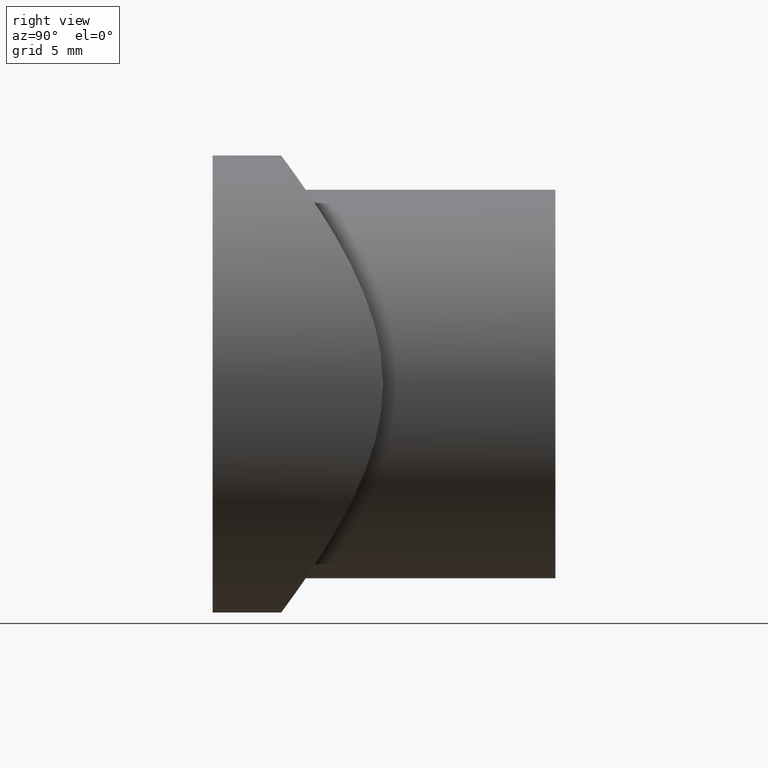
[diagram: clean part render]
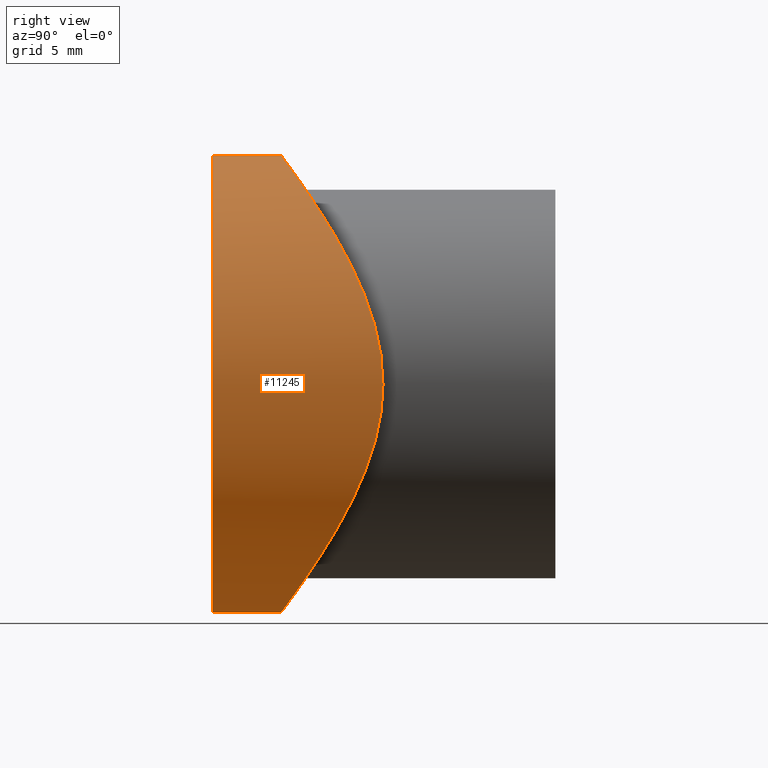
[diagram: same view with one face highlighted and labeled with its STEP entity id]
A machine part, right view. The second image highlights one B-rep face of the part: STEP entity #11245.
In plain terms, the highlighted cylindrical surface (partial cylindrical patch) has radius 10 mm, axis along (-0, -1, -0).
Its self-contained STEP definition (entity closure, byte-faithful):
#122 = CARTESIAN_POINT ( 'NONE',  ( 1.224646799147353300E-015, 20.00000000000000000, 10.00000000000000000 ) ) ;
#335 = CARTESIAN_POINT ( 'NONE',  ( 9.639878361173988000, 7.069446285023819800, 2.679750404850660400 ) ) ;
#435 = CARTESIAN_POINT ( 'NONE',  ( 9.982610433713347200, 7.435974106570739700, 0.6810471933536530500 ) ) ;
#481 = CARTESIAN_POINT ( 'NONE',  ( 5.111962595166546400, 4.005593408410363500, -8.600777973116308300 ) ) ;
#735 = CARTESIAN_POINT ( 'NONE',  ( 1.224646865619358800E-015, 2.999999999999996900, 10.00000000000000000 ) ) ;
#965 = B_SPLINE_CURVE_WITH_KNOTS ( 'NONE', 3,
 ( #5951, #1515, #3647, #1473, #4727, #5797, #8087, #9226, #2565, #481, #8187, #7114, #9141, #12461, #3787, #9178, #10332, #3695, #13581, #1426, #8235, #3598, #12558, #11447, #13678, #11364, #5847, #3741, #435, #7068, #6970, #1376, #335, #2522, #11543, #11493, #4872, #5998, #5900, #9273, #10287, #4779, #2610, #8039, #12507, #1561, #13725, #9317, #2658, #10425 ),
 .UNSPECIFIED., .F., .F.,
 ( 4, 2, 2, 2, 2, 2, 2, 2, 2, 2, 2, 2, 2, 2, 2, 2, 2, 2, 2, 2, 2, 2, 2, 2, 4 ),
 ( 1.432267645603894700E-019, 0.002044634869169815100, 0.003066952303754722300, 0.004089269738339628600, 0.005111587172924535700, 0.006133904607509442800, 0.008178539476679257100, 0.009200856911264168600, 0.01022317434584907500, 0.01226780921501889300, 0.01329012664960380400, 0.01431244408418871600, 0.01533476151877362500, 0.01635707895335853900, 0.01737939638794344700, 0.01840171382252836100, 0.01942403125711327300, 0.02044634869169818100, 0.02249098356086800700, 0.02351330099545291500, 0.02453561843003782700, 0.02658025329920765000, 0.02862488816837747300, 0.03066952303754729900, 0.03271415790671712600 ),
 .UNSPECIFIED. ) ;
#1376 = CARTESIAN_POINT ( 'NONE',  ( 9.723699100847467100, 7.156879312681614800, 2.358572600559647000 ) ) ;
#1426 = CARTESIAN_POINT ( 'NONE',  ( 9.328360622382760400, 6.759073173045164800, -3.617378218463643200 ) ) ;
#1473 = CARTESIAN_POINT ( 'NONE',  ( 2.361936728301609700, 3.204783231972737000, -9.722932823276236600 ) ) ;
#1515 = CARTESIAN_POINT ( 'NONE',  ( 0.6928124693824041500, 2.999999999999996900, -10.00000000000000000 ) ) ;
#1561 = CARTESIAN_POINT ( 'NONE',  ( 3.339930489356901500, 3.405910383273057700, 9.448747293761261500 ) ) ;
#1903 = EDGE_CURVE ( 'NONE', #9689, #4458, #9684, .T. ) ;
#2423 = AXIS2_PLACEMENT_3D ( 'NONE', #4849, #10548, #5000 ) ;
#2425 = VERTEX_POINT ( 'NONE', #735 ) ;
#2522 = CARTESIAN_POINT ( 'NONE',  ( 9.442819036225074600, 6.871105937171593700, 3.307791665089129900 ) ) ;
#2565 = CARTESIAN_POINT ( 'NONE',  ( 4.542938130963912100, 3.786780420074221400, -8.914440894159248800 ) ) ;
#2610 = CARTESIAN_POINT ( 'NONE',  ( 6.181966442926166000, 4.490786429201897100, 7.886136779715221800 ) ) ;
#2658 = CARTESIAN_POINT ( 'NONE',  ( 0.6836301136196195600, 2.999999999999996400, 9.999999999999998200 ) ) ;
#3564 = LINE ( 'NONE', #122, #4276 ) ;
#3598 = CARTESIAN_POINT ( 'NONE',  ( 9.639743922445001400, 7.069306619524739200, -2.680255240991826300 ) ) ;
#3647 = CARTESIAN_POINT ( 'NONE',  ( 1.369403654986343100, 3.053161455334599200, -9.928816888606604600 ) ) ;
#3695 = CARTESIAN_POINT ( 'NONE',  ( 8.649230539514967100, 6.140309248789511900, -5.057846401117871900 ) ) ;
#3741 = CARTESIAN_POINT ( 'NONE',  ( 10.00001195805195100, 7.455431592392099700, 0.3408204138369244600 ) ) ;
#3787 = CARTESIAN_POINT ( 'NONE',  ( 7.541389901650789300, 5.310464725808679500, -6.574678123903396500 ) ) ;
#4276 = VECTOR ( 'NONE', #6804, 1000.000000000000000 ) ;
#4301 = CARTESIAN_POINT ( 'NONE',  ( 0.0000000000000000000, 20.00000000000000000, 0.0000000000000000000 ) ) ;
#4458 = VERTEX_POINT ( 'NONE', #8060 ) ;
#4727 = CARTESIAN_POINT ( 'NONE',  ( 2.690427507752437100, 3.267702392545322400, -9.637184652507045300 ) ) ;
#4779 = CARTESIAN_POINT ( 'NONE',  ( 6.663736969602333600, 4.755219293914633400, 7.482572283424668000 ) ) ;
#4849 = CARTESIAN_POINT ( 'NONE',  ( 0.0000000000000000000, 0.0000000000000000000, 0.0000000000000000000 ) ) ;
#4872 = CARTESIAN_POINT ( 'NONE',  ( 8.647152279869523300, 6.138538418109910700, 5.061471254169259900 ) ) ;
#5000 = DIRECTION ( 'NONE',  ( 0.0000000000000000000, 0.0000000000000000000, 1.000000000000000000 ) ) ;
#5027 = CARTESIAN_POINT ( 'NONE',  ( 1.480016496645224400E-016, 2.999999999999997300, -10.00000000000000000 ) ) ;
#5309 = ORIENTED_EDGE ( 'NONE', *, *, #10605, .T. ) ;
#5664 = FACE_OUTER_BOUND ( 'NONE', #10501, .T. ) ;
#5797 = CARTESIAN_POINT ( 'NONE',  ( 3.333577867812950800, 3.415483170243556600, -9.434033432218480900 ) ) ;
#5847 = CARTESIAN_POINT ( 'NONE',  ( 9.999988029650376500, 7.455404989263312700, -0.3415217745901048500 ) ) ;
#5900 = CARTESIAN_POINT ( 'NONE',  ( 7.936587232922568600, 5.588490723815538400, 6.091752204375290500 ) ) ;
#5951 = CARTESIAN_POINT ( 'NONE',  ( 1.480016496645224400E-016, 2.999999999999997300, -10.00000000000000000 ) ) ;
#5998 = CARTESIAN_POINT ( 'NONE',  ( 8.123208101144644600, 5.727815718240517400, 5.840498574394712400 ) ) ;
#6064 = VECTOR ( 'NONE', #8961, 1000.000000000000000 ) ;
#6414 = ORIENTED_EDGE ( 'NONE', *, *, #7929, .T. ) ;
#6804 = DIRECTION ( 'NONE',  ( -0.0000000000000000000, -1.000000000000000000, -0.0000000000000000000 ) ) ;
#6970 = CARTESIAN_POINT ( 'NONE',  ( 9.860233819173661400, 7.301874216862191100, 1.699699369640559600 ) ) ;
#7068 = CARTESIAN_POINT ( 'NONE',  ( 9.913006127448383600, 7.359483876266066800, 1.359649170936497500 ) ) ;
#7114 = CARTESIAN_POINT ( 'NONE',  ( 6.184840822006905500, 4.492068991472705400, -7.884254400224293100 ) ) ;
#7929 = EDGE_CURVE ( 'NONE', #2425, #11489, #3564, .T. ) ;
#8037 = DIRECTION ( 'NONE',  ( 0.0000000000000000000, 0.0000000000000000000, -1.000000000000000000 ) ) ;
#8039 = CARTESIAN_POINT ( 'NONE',  ( 5.128552927785058600, 4.002612997085131000, 8.608472993321735000 ) ) ;
#8060 = CARTESIAN_POINT ( 'NONE',  ( 0.0000000000000000000, 0.0000000000000000000, -10.00000000000000000 ) ) ;
#8087 = CARTESIAN_POINT ( 'NONE',  ( 3.645099090485948600, 3.499487306597341500, -9.317807476157451400 ) ) ;
#8187 = CARTESIAN_POINT ( 'NONE',  ( 5.389062262098942600, 4.123363174215502800, -8.429794706603226800 ) ) ;
#8235 = CARTESIAN_POINT ( 'NONE',  ( 9.442537252971174400, 6.870826684151739800, -3.308613194894672200 ) ) ;
#8409 = AXIS2_PLACEMENT_3D ( 'NONE', #4301, #10235, #8037 ) ;
#8807 = ORIENTED_EDGE ( 'NONE', *, *, #1903, .F. ) ;
#8961 = DIRECTION ( 'NONE',  ( -0.0000000000000000000, -1.000000000000000000, -0.0000000000000000000 ) ) ;
#9141 = CARTESIAN_POINT ( 'NONE',  ( 6.667854977889002800, 4.757571410311298300, -7.478910675423984200 ) ) ;
#9178 = CARTESIAN_POINT ( 'NONE',  ( 7.939709596505474900, 5.590772619710363300, -6.087689677111777400 ) ) ;
#9226 = CARTESIAN_POINT ( 'NONE',  ( 4.249782439530880800, 3.685131194638158600, -9.058014835429016600 ) ) ;
#9273 = CARTESIAN_POINT ( 'NONE',  ( 7.538211159503913600, 5.308313719316934100, 6.578315463705839900 ) ) ;
#9317 = CARTESIAN_POINT ( 'NONE',  ( 1.360598588629004200, 3.051824042411498600, 9.930632733466973500 ) ) ;
#9684 = LINE ( 'NONE', #10128, #6064 ) ;
#9689 = VERTEX_POINT ( 'NONE', #5027 ) ;
#10128 = CARTESIAN_POINT ( 'NONE',  ( 0.0000000000000000000, 20.00000000000000000, -10.00000000000000000 ) ) ;
#10235 = DIRECTION ( 'NONE',  ( -0.0000000000000000000, -1.000000000000000000, -0.0000000000000000000 ) ) ;
#10287 = CARTESIAN_POINT ( 'NONE',  ( 7.326477332505043600, 5.167583306881559800, 6.813317803425127800 ) ) ;
#10332 = CARTESIAN_POINT ( 'NONE',  ( 8.126148033024673400, 5.730050316200749400, -5.836391687602374900 ) ) ;
#10425 = CARTESIAN_POINT ( 'NONE',  ( 1.224646865619358800E-015, 2.999999999999996900, 10.00000000000000000 ) ) ;
#10501 = EDGE_LOOP ( 'NONE', ( #5309, #6414, #12330, #8807 ) ) ;
#10548 = DIRECTION ( 'NONE',  ( 0.0000000000000000000, 1.000000000000000000, 0.0000000000000000000 ) ) ;
#10605 = EDGE_CURVE ( 'NONE', #9689, #2425, #965, .T. ) ;
#11152 = CIRCLE ( 'NONE', #2423, 10.00000000000000000 ) ;
#11245 = ADVANCED_FACE ( 'NONE', ( #5664 ), #14165, .T. ) ;
#11364 = CARTESIAN_POINT ( 'NONE',  ( 9.982559641066435700, 7.435912690220182400, -0.6836836403932821100 ) ) ;
#11447 = CARTESIAN_POINT ( 'NONE',  ( 9.859340936306022500, 7.300916270196551300, -1.704512141714381600 ) ) ;
#11489 = VERTEX_POINT ( 'NONE', #13042 ) ;
#11493 = CARTESIAN_POINT ( 'NONE',  ( 8.949117784116865000, 6.403294574025530900, 4.509069013459567000 ) ) ;
#11543 = CARTESIAN_POINT ( 'NONE',  ( 9.328864953637960900, 6.759545757067894700, 3.616197145803840200 ) ) ;
#11838 = EDGE_CURVE ( 'NONE', #11489, #4458, #11152, .T. ) ;
#12330 = ORIENTED_EDGE ( 'NONE', *, *, #11838, .T. ) ;
#12461 = CARTESIAN_POINT ( 'NONE',  ( 7.330318853176414100, 5.170080027165587600, -6.809186752839791800 ) ) ;
#12507 = CARTESIAN_POINT ( 'NONE',  ( 4.550574894693248500, 3.777365004438618900, 8.928954542547751700 ) ) ;
#12558 = CARTESIAN_POINT ( 'NONE',  ( 9.723344996237324600, 7.156513093708023000, -2.359772748320903000 ) ) ;
#13042 = CARTESIAN_POINT ( 'NONE',  ( 1.224646799147353300E-015, 0.0000000000000000000, 10.00000000000000000 ) ) ;
#13581 = CARTESIAN_POINT ( 'NONE',  ( 8.950193851065275700, 6.404302976158896300, -4.506548383729986900 ) ) ;
#13678 = CARTESIAN_POINT ( 'NONE',  ( 9.911747849590824400, 7.358106820803841200, -1.369735329806989200 ) ) ;
#13725 = CARTESIAN_POINT ( 'NONE',  ( 2.701288846187134900, 3.256615821581380300, 9.652550625396894900 ) ) ;
#14165 = CYLINDRICAL_SURFACE ( 'NONE', #8409, 10.00000000000000000 ) ;